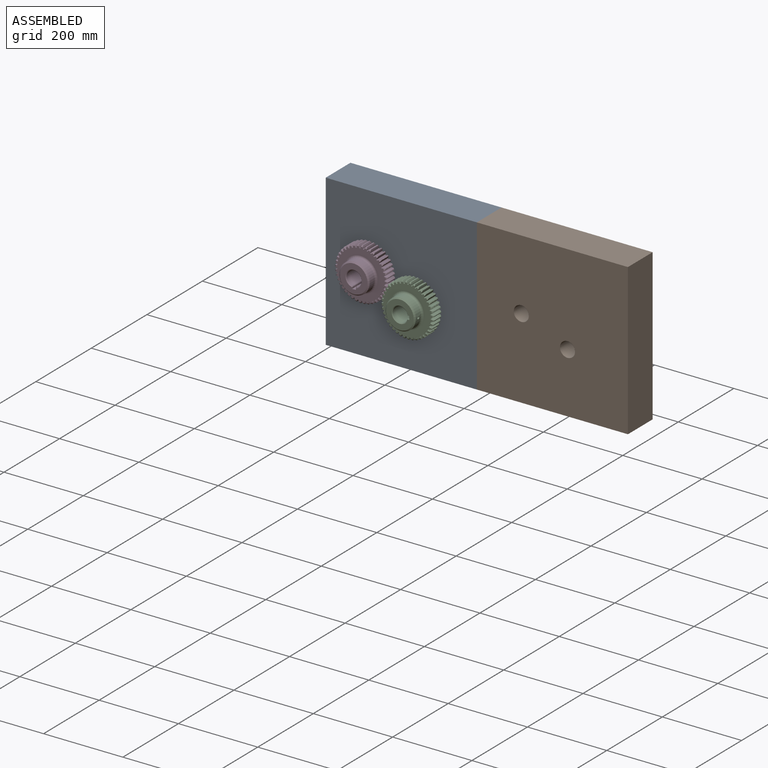
[diagram: assembled view]
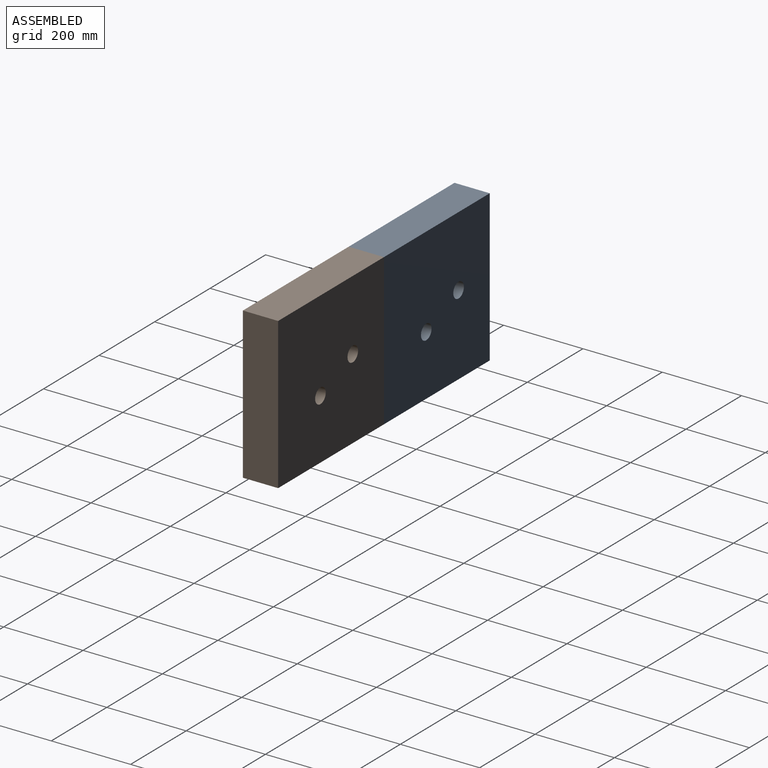
[diagram: assembled view, second angle]
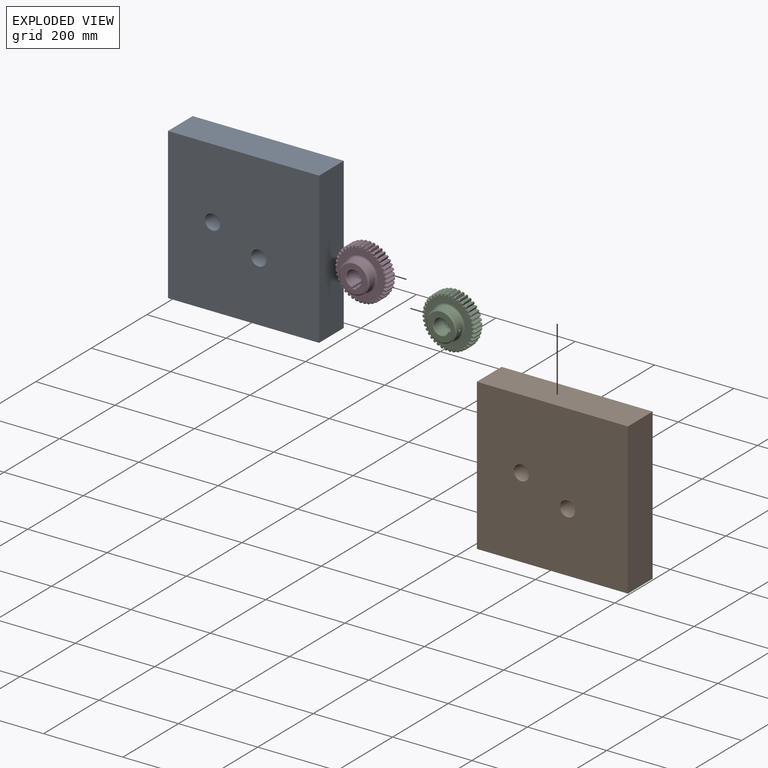
[diagram: exploded view]
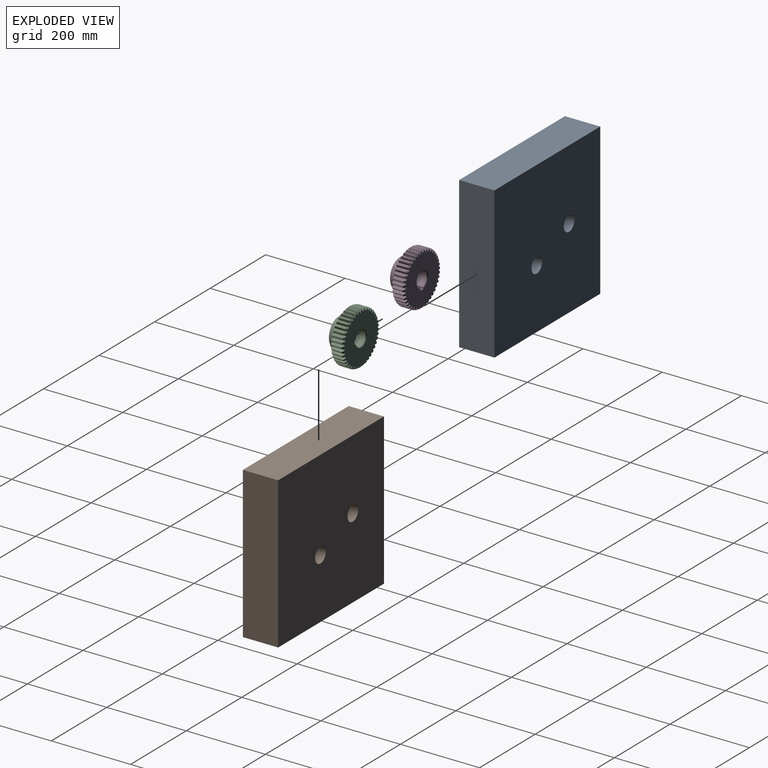
[diagram: exploded view, second angle]
ASSEMBLY  parts=4 mates=5
PART A: 8 faces, bbox 381x88.9x381 mm
  f0: plane 381x88.9mm, normal (0,0,1), area 33870.9mm2, adj f1,f5,f6,f7
  f1: plane 381x88.9mm, normal (-1,0,0), area 33870.9mm2, adj f0,f2,f6,f7
  f2: plane 381x88.9mm, normal (0,0,-1), area 33870.9mm2, adj f1,f5,f6,f7
  f3: cylinder r=19.05mm len=88.9mm, axis (0,1,0), area 10640.9mm2, adj f6,f7
  f4: cylinder r=19.05mm len=88.9mm, axis (0,1,0), area 10640.9mm2, adj f6,f7
  f5: plane 381x88.9mm, normal (1,0,0), area 33870.9mm2, adj f0,f2,f6,f7
  f6: plane 381x381mm, normal (0,-1,0), area 142880.8mm2, adj f0,f1,f2,f3,f4,f5
  f7: plane 381x381mm, normal (0,1,0), area 142880.8mm2, adj f0,f1,f2,f3,f4,f5
PART B: same geometry as A
PART C: 335 faces, bbox 133.3x57.2x133.3 mm
  f0: plane 126.91x126.91mm, normal (0,-1,0), area 6228.7mm2, adj f41,f42,f43,f44,f45,f46,f47,f48
  f1: cylinder r=66.67mm len=25.4mm, axis (0,1,0), area 61.3mm2, adj f83,f120,f255,f256
  f2: cylinder r=66.67mm len=25.4mm, axis (0,1,0), area 61.3mm2, adj f118,f119,f257,f258
  f3: cylinder r=66.67mm len=25.4mm, axis (0,1,0), area 61.3mm2, adj f116,f117,f259,f260
  f4: cylinder r=66.67mm len=25.4mm, axis (0,1,0), area 61.3mm2, adj f114,f115,f261,f262
  f5: cylinder r=66.67mm len=25.4mm, axis (0,1,0), area 61.3mm2, adj f112,f113,f263,f264
  f6: cylinder r=66.67mm len=25.4mm, axis (0,1,0), area 61.3mm2, adj f110,f111,f265,f266
  f7: cylinder r=66.67mm len=25.4mm, axis (0,1,0), area 61.3mm2, adj f108,f109,f267,f268
  f8: cylinder r=66.67mm len=25.4mm, axis (0,1,0), area 61.3mm2, adj f106,f107,f269,f270
  f9: cylinder r=66.67mm len=25.4mm, axis (0,1,0), area 61.3mm2, adj f101,f104,f273,f274
  f10: cylinder r=66.67mm len=25.4mm, axis (0,1,0), area 61.3mm2, adj f102,f105,f271,f272
  f11: cylinder r=66.67mm len=25.4mm, axis (0,1,0), area 61.3mm2, adj f100,f103,f275,f276
  f12: cylinder r=66.67mm len=25.4mm, axis (0,1,0), area 61.3mm2, adj f98,f99,f277,f278
  f13: cylinder r=66.67mm len=25.4mm, axis (0,1,0), area 61.3mm2, adj f96,f97,f279,f280
  f14: cylinder r=66.67mm len=25.4mm, axis (0,1,0), area 61.3mm2, adj f94,f95,f281,f282
  f15: cylinder r=66.67mm len=25.4mm, axis (0,1,0), area 61.3mm2, adj f92,f93,f283,f284
  f16: cylinder r=66.67mm len=25.4mm, axis (0,1,0), area 61.3mm2, adj f90,f91,f285,f286
  f17: cylinder r=66.67mm len=25.4mm, axis (0,1,0), area 61.3mm2, adj f79,f88,f289,f290
  f18: cylinder r=66.67mm len=25.4mm, axis (0,1,0), area 61.3mm2, adj f86,f87,f291,f292
  f19: cylinder r=66.67mm len=25.4mm, axis (0,1,0), area 61.3mm2, adj f81,f84,f295,f296
  f20: cylinder r=66.67mm len=25.4mm, axis (0,1,0), area 61.3mm2, adj f82,f85,f293,f294
  f21: cylinder r=66.67mm len=25.4mm, axis (0,1,0), area 61.3mm2, adj f77,f80,f297,f298
  f22: cylinder r=66.67mm len=25.4mm, axis (0,1,0), area 61.3mm2, adj f75,f78,f299,f300
  f23: cylinder r=66.67mm len=25.4mm, axis (0,1,0), area 61.3mm2, adj f73,f76,f301,f302
  f24: cylinder r=66.67mm len=25.4mm, axis (0,1,0), area 61.3mm2, adj f57,f74,f303,f304
  f25: cylinder r=66.67mm len=25.4mm, axis (0,1,0), area 61.3mm2, adj f41,f72,f305,f306
  f26: cylinder r=66.67mm len=25.4mm, axis (0,1,0), area 61.3mm2, adj f70,f71,f307,f308
  f27: cylinder r=66.67mm len=25.4mm, axis (0,1,0), area 61.3mm2, adj f68,f69,f309,f310
  f28: cylinder r=66.67mm len=25.4mm, axis (0,1,0), area 61.3mm2, adj f66,f67,f311,f312
  f29: cylinder r=66.67mm len=25.4mm, axis (0,1,0), area 61.3mm2, adj f61,f64,f315,f316
  f30: cylinder r=66.67mm len=25.4mm, axis (0,1,0), area 61.3mm2, adj f62,f65,f313,f314
  f31: cylinder r=66.67mm len=25.4mm, axis (0,1,0), area 61.3mm2, adj f60,f63,f317,f318
  f32: cylinder r=66.67mm len=25.4mm, axis (0,1,0), area 61.3mm2, adj f58,f59,f319,f320
  f33: cylinder r=66.67mm len=25.4mm, axis (0,1,0), area 61.3mm2, adj f51,f56,f321,f322
  f34: cylinder r=66.67mm len=25.4mm, axis (0,1,0), area 61.3mm2, adj f54,f55,f323,f324
  f35: cylinder r=66.67mm len=25.4mm, axis (0,1,0), area 61.3mm2, adj f49,f52,f327,f328
  f36: cylinder r=66.67mm len=25.4mm, axis (0,1,0), area 61.3mm2, adj f50,f89,f287,f288
  f37: cylinder r=66.67mm len=25.4mm, axis (0,1,0), area 61.3mm2, adj f48,f53,f325,f326
  f38: cylinder r=66.67mm len=25.4mm, axis (0,1,0), area 61.3mm2, adj f46,f47,f329,f330
  f39: cylinder r=66.67mm len=25.4mm, axis (0,1,0), area 61.3mm2, adj f44,f45,f331,f332
  f40: cylinder r=66.67mm len=25.4mm, axis (0,1,0), area 61.3mm2, adj f42,f43,f333,f334
  f41: extruded ~31.75x6.32mm, area 205.6mm2, adj f0,f25,f126,f128,f305,f306
  f42: extruded ~31.75x6.32mm, area 205.6mm2, adj f0,f40,f126,f129,f333,f334
  f43: extruded ~31.75x6.63mm, area 205.6mm2, adj f0,f40,f126,f131,f333,f334
  f44: extruded ~31.75x5.85mm, area 205.6mm2, adj f0,f39,f126,f132,f331,f332
  f45: extruded ~31.75x6.78mm, area 205.6mm2, adj f0,f39,f126,f134,f331,f332
  f46: extruded ~31.75x5.24mm, area 205.6mm2, adj f0,f38,f126,f135,f329,f330
  f47: extruded ~31.75x6.77mm, area 205.6mm2, adj f0,f38,f126,f137,f329,f330
  f48: extruded ~31.75x5.1mm, area 205.6mm2, adj f0,f37,f126,f138,f325,f326
  f49: extruded ~31.75x5.1mm, area 205.6mm2, adj f0,f35,f126,f140,f327,f328
  f50: extruded ~31.75x6.77mm, area 205.6mm2, adj f0,f36,f126,f141,f287,f288
  f51: extruded ~31.75x5.74mm, area 205.6mm2, adj f0,f33,f126,f143,f321,f322
  f52: extruded ~31.75x6.58mm, area 205.6mm2, adj f0,f35,f126,f144,f327,f328
  f53: extruded ~31.75x6.58mm, area 205.6mm2, adj f0,f37,f126,f146,f325,f326
  f54: extruded ~31.75x5.74mm, area 205.6mm2, adj f0,f34,f126,f147,f323,f324
  f55: extruded ~31.75x6.24mm, area 205.6mm2, adj f0,f34,f126,f149,f323,f324
  f56: extruded ~31.75x6.24mm, area 205.6mm2, adj f0,f33,f126,f150,f321,f322
  f57: extruded ~31.75x6.78mm, area 205.6mm2, adj f0,f24,f126,f152,f303,f304
  f58: extruded ~31.75x5.24mm, area 205.6mm2, adj f0,f32,f126,f153,f319,f320
  f59: extruded ~31.75x6.77mm, area 205.6mm2, adj f0,f32,f126,f155,f319,f320
  f60: extruded ~31.75x5.1mm, area 205.6mm2, adj f0,f31,f126,f156,f317,f318
  f61: extruded ~31.75x6.24mm, area 205.6mm2, adj f0,f29,f126,f158,f315,f316
  f62: extruded ~31.75x6.24mm, area 205.6mm2, adj f0,f30,f126,f159,f313,f314
  f63: extruded ~31.75x6.58mm, area 205.6mm2, adj f0,f31,f126,f161,f317,f318
  f64: extruded ~31.75x5.74mm, area 205.6mm2, adj f0,f29,f126,f162,f315,f316
  f65: extruded ~31.75x5.74mm, area 205.6mm2, adj f0,f30,f126,f164,f313,f314
  f66: extruded ~31.75x6.58mm, area 205.6mm2, adj f0,f28,f126,f165,f311,f312
  f67: extruded ~31.75x5.1mm, area 205.6mm2, adj f0,f28,f126,f167,f311,f312
  f68: extruded ~31.75x6.77mm, area 205.6mm2, adj f0,f27,f126,f168,f309,f310
  f69: extruded ~31.75x5.24mm, area 205.6mm2, adj f0,f27,f126,f170,f309,f310
  f70: extruded ~31.75x6.78mm, area 205.6mm2, adj f0,f26,f126,f171,f307,f308
  f71: extruded ~31.75x5.85mm, area 205.6mm2, adj f0,f26,f126,f173,f307,f308
  f72: extruded ~31.75x6.63mm, area 205.6mm2, adj f0,f25,f126,f174,f305,f306
  f73: extruded ~31.75x6.63mm, area 205.6mm2, adj f0,f23,f126,f176,f301,f302
  f74: extruded ~31.75x5.85mm, area 205.6mm2, adj f0,f24,f126,f177,f303,f304
  f75: extruded ~31.75x6.32mm, area 205.6mm2, adj f0,f22,f126,f179,f299,f300
  f76: extruded ~31.75x6.32mm, area 205.6mm2, adj f0,f23,f126,f180,f301,f302
  f77: extruded ~31.75x5.85mm, area 205.6mm2, adj f0,f21,f126,f182,f297,f298
  f78: extruded ~31.75x6.63mm, area 205.6mm2, adj f0,f22,f126,f183,f299,f300
  f79: extruded ~31.75x5.24mm, area 205.6mm2, adj f0,f17,f126,f185,f289,f290
  f80: extruded ~31.75x6.78mm, area 205.6mm2, adj f0,f21,f126,f186,f297,f298
  f81: extruded ~31.75x6.24mm, area 205.6mm2, adj f0,f19,f126,f188,f295,f296
  f82: extruded ~31.75x6.24mm, area 205.6mm2, adj f0,f20,f126,f189,f293,f294
  f83: extruded ~31.75x6.58mm, area 205.6mm2, adj f0,f1,f126,f191,f255,f256
  f84: extruded ~31.75x5.74mm, area 205.6mm2, adj f0,f19,f126,f192,f295,f296
  f85: extruded ~31.75x5.74mm, area 205.6mm2, adj f0,f20,f126,f194,f293,f294
  f86: extruded ~31.75x6.58mm, area 205.6mm2, adj f0,f18,f126,f195,f291,f292
  f87: extruded ~31.75x5.1mm, area 205.6mm2, adj f0,f18,f126,f197,f291,f292
  f88: extruded ~31.75x6.77mm, area 205.6mm2, adj f0,f17,f126,f198,f289,f290
  f89: extruded ~31.75x5.24mm, area 205.6mm2, adj f0,f36,f126,f200,f287,f288
  f90: extruded ~31.75x6.78mm, area 205.6mm2, adj f0,f16,f126,f201,f285,f286
  f91: extruded ~31.75x5.85mm, area 205.6mm2, adj f0,f16,f126,f203,f285,f286
  f92: extruded ~31.75x6.63mm, area 205.6mm2, adj f0,f15,f126,f204,f283,f284
  f93: extruded ~31.75x6.32mm, area 205.6mm2, adj f0,f15,f126,f206,f283,f284
  f94: extruded ~31.75x6.32mm, area 205.6mm2, adj f0,f14,f126,f207,f281,f282
  f95: extruded ~31.75x6.63mm, area 205.6mm2, adj f0,f14,f126,f209,f281,f282
  f96: extruded ~31.75x5.85mm, area 205.6mm2, adj f0,f13,f126,f210,f279,f280
  f97: extruded ~31.75x6.78mm, area 205.6mm2, adj f0,f13,f126,f212,f279,f280
  f98: extruded ~31.75x5.24mm, area 205.6mm2, adj f0,f12,f126,f213,f277,f278
  f99: extruded ~31.75x6.77mm, area 205.6mm2, adj f0,f12,f126,f215,f277,f278
  f100: extruded ~31.75x5.1mm, area 205.6mm2, adj f0,f11,f126,f216,f275,f276
  f101: extruded ~31.75x6.24mm, area 205.6mm2, adj f0,f9,f126,f218,f273,f274
  f102: extruded ~31.75x6.24mm, area 205.6mm2, adj f0,f10,f126,f219,f271,f272
  f103: extruded ~31.75x6.58mm, area 205.6mm2, adj f0,f11,f126,f221,f275,f276
  f104: extruded ~31.75x5.74mm, area 205.6mm2, adj f0,f9,f126,f222,f273,f274
  f105: extruded ~31.75x5.74mm, area 205.6mm2, adj f0,f10,f126,f224,f271,f272
  f106: extruded ~31.75x6.58mm, area 205.6mm2, adj f0,f8,f126,f225,f269,f270
  f107: extruded ~31.75x5.1mm, area 205.6mm2, adj f0,f8,f126,f227,f269,f270
  f108: extruded ~31.75x6.77mm, area 205.6mm2, adj f0,f7,f126,f228,f267,f268
  f109: extruded ~31.75x5.24mm, area 205.6mm2, adj f0,f7,f126,f230,f267,f268
  f110: extruded ~31.75x6.78mm, area 205.6mm2, adj f0,f6,f126,f231,f265,f266
  f111: extruded ~31.75x5.85mm, area 205.6mm2, adj f0,f6,f126,f233,f265,f266
  f112: extruded ~31.75x6.63mm, area 205.6mm2, adj f0,f5,f126,f234,f263,f264
  f113: extruded ~31.75x6.32mm, area 205.6mm2, adj f0,f5,f126,f236,f263,f264
  f114: extruded ~31.75x6.32mm, area 205.6mm2, adj f0,f4,f126,f237,f261,f262
  f115: extruded ~31.75x6.63mm, area 205.6mm2, adj f0,f4,f126,f239,f261,f262
  f116: extruded ~31.75x5.85mm, area 205.6mm2, adj f0,f3,f126,f240,f259,f260
  f117: extruded ~31.75x6.78mm, area 205.6mm2, adj f0,f3,f126,f242,f259,f260
  f118: extruded ~31.75x5.24mm, area 205.6mm2, adj f0,f2,f126,f243,f257,f258
  f119: extruded ~31.75x6.77mm, area 205.6mm2, adj f0,f2,f126,f245,f257,f258
  f120: extruded ~31.75x5.1mm, area 205.6mm2, adj f0,f1,f126,f246,f255,f256
  f121: cylinder r=38.1mm len=76.2mm, axis (0,1,0), area 4070.8mm2, adj f248,f249,f250
  f122: plane 57.15x4.22mm, normal (-1,0,0), area 241.1mm2, adj f125,f126,f247,f251,f252,f253
  f123: cylinder r=19.05mm len=54.1mm, axis (0,1,0), area 5835.6mm2, adj f251,f252,f253,f254
  f124: plane 57.15x4.22mm, normal (1,0,0), area 241.1mm2, adj f125,f126,f247,f252,f253,f254
  f125: plane 57.15x9.53mm, normal (0,0,-1), area 510.9mm2, adj f122,f124,f126,f247,f250
  f126: plane 126.91x126.91mm, normal (0,1,0), area 10723.8mm2, adj f41,f42,f43,f44,f45,f46,f47,f48
  f127: cylinder r=59.53mm len=31.75mm, axis (0,1,0), area 43.3mm2, adj f0,f126,f128,f129
  f128: cylinder r=0.84mm len=31.75mm, axis (0,1,0), area 38mm2, adj f0,f41,f126,f127
  f129: cylinder r=0.84mm len=31.75mm, axis (0,1,0), area 38mm2, adj f0,f42,f126,f127
  f130: cylinder r=59.53mm len=31.75mm, axis (0,1,0), area 43.3mm2, adj f0,f126,f131,f132
  f131: cylinder r=0.84mm len=31.75mm, axis (0,1,0), area 38mm2, adj f0,f43,f126,f130
  f132: cylinder r=0.84mm len=31.75mm, axis (0,1,0), area 38mm2, adj f0,f44,f126,f130
  f133: cylinder r=59.53mm len=31.75mm, axis (0,1,0), area 43.3mm2, adj f0,f126,f134,f135
  f134: cylinder r=0.84mm len=31.75mm, axis (0,1,0), area 38mm2, adj f0,f45,f126,f133
  f135: cylinder r=0.84mm len=31.75mm, axis (0,1,0), area 38mm2, adj f0,f46,f126,f133
  f136: cylinder r=59.53mm len=31.75mm, axis (0,1,0), area 43.3mm2, adj f0,f126,f137,f138
  f137: cylinder r=0.84mm len=31.75mm, axis (0,1,0), area 38mm2, adj f0,f47,f126,f136
  f138: cylinder r=0.84mm len=31.75mm, axis (0,1,0), area 38mm2, adj f0,f48,f126,f136
  f139: cylinder r=59.53mm len=31.75mm, axis (0,1,0), area 43.3mm2, adj f0,f126,f140,f141
  f140: cylinder r=0.84mm len=31.75mm, axis (0,1,0), area 38mm2, adj f0,f49,f126,f139
  f141: cylinder r=0.84mm len=31.75mm, axis (0,1,0), area 38mm2, adj f0,f50,f126,f139
  f142: cylinder r=59.53mm len=31.75mm, axis (0,1,0), area 43.3mm2, adj f0,f126,f143,f144
  f143: cylinder r=0.84mm len=31.75mm, axis (0,1,0), area 38mm2, adj f0,f51,f126,f142
  f144: cylinder r=0.84mm len=31.75mm, axis (0,1,0), area 38mm2, adj f0,f52,f126,f142
  f145: cylinder r=59.53mm len=31.75mm, axis (0,1,0), area 43.3mm2, adj f0,f126,f146,f147
  f146: cylinder r=0.84mm len=31.75mm, axis (0,1,0), area 38mm2, adj f0,f53,f126,f145
  f147: cylinder r=0.84mm len=31.75mm, axis (0,1,0), area 38mm2, adj f0,f54,f126,f145
  f148: cylinder r=59.53mm len=31.75mm, axis (0,1,0), area 43.3mm2, adj f0,f126,f149,f150
  f149: cylinder r=0.84mm len=31.75mm, axis (0,1,0), area 38mm2, adj f0,f55,f126,f148
  f150: cylinder r=0.84mm len=31.75mm, axis (0,1,0), area 38mm2, adj f0,f56,f126,f148
  f151: cylinder r=59.53mm len=31.75mm, axis (0,1,0), area 43.3mm2, adj f0,f126,f152,f153
  f152: cylinder r=0.84mm len=31.75mm, axis (0,1,0), area 38mm2, adj f0,f57,f126,f151
  f153: cylinder r=0.84mm len=31.75mm, axis (0,1,0), area 38mm2, adj f0,f58,f126,f151
  f154: cylinder r=59.53mm len=31.75mm, axis (0,1,0), area 43.3mm2, adj f0,f126,f155,f156
  f155: cylinder r=0.84mm len=31.75mm, axis (0,1,0), area 38mm2, adj f0,f59,f126,f154
  f156: cylinder r=0.84mm len=31.75mm, axis (0,1,0), area 38mm2, adj f0,f60,f126,f154
  f157: cylinder r=59.53mm len=31.75mm, axis (0,1,0), area 43.3mm2, adj f0,f126,f158,f159
  f158: cylinder r=0.84mm len=31.75mm, axis (0,1,0), area 38mm2, adj f0,f61,f126,f157
  f159: cylinder r=0.84mm len=31.75mm, axis (0,1,0), area 38mm2, adj f0,f62,f126,f157
  f160: cylinder r=59.53mm len=31.75mm, axis (0,1,0), area 43.3mm2, adj f0,f126,f161,f162
  f161: cylinder r=0.84mm len=31.75mm, axis (0,1,0), area 38mm2, adj f0,f63,f126,f160
  f162: cylinder r=0.84mm len=31.75mm, axis (0,1,0), area 38mm2, adj f0,f64,f126,f160
  f163: cylinder r=59.53mm len=31.75mm, axis (0,1,0), area 43.3mm2, adj f0,f126,f164,f165
  f164: cylinder r=0.84mm len=31.75mm, axis (0,1,0), area 38mm2, adj f0,f65,f126,f163
  f165: cylinder r=0.84mm len=31.75mm, axis (0,1,0), area 38mm2, adj f0,f66,f126,f163
  f166: cylinder r=59.53mm len=31.75mm, axis (0,1,0), area 43.3mm2, adj f0,f126,f167,f168
  f167: cylinder r=0.84mm len=31.75mm, axis (0,1,0), area 38mm2, adj f0,f67,f126,f166
  f168: cylinder r=0.84mm len=31.75mm, axis (0,1,0), area 38mm2, adj f0,f68,f126,f166
  f169: cylinder r=59.53mm len=31.75mm, axis (0,1,0), area 43.3mm2, adj f0,f126,f170,f171
  f170: cylinder r=0.84mm len=31.75mm, axis (0,1,0), area 38mm2, adj f0,f69,f126,f169
  f171: cylinder r=0.84mm len=31.75mm, axis (0,1,0), area 38mm2, adj f0,f70,f126,f169
  f172: cylinder r=59.53mm len=31.75mm, axis (0,1,0), area 43.3mm2, adj f0,f126,f173,f174
  f173: cylinder r=0.84mm len=31.75mm, axis (0,1,0), area 38mm2, adj f0,f71,f126,f172
  f174: cylinder r=0.84mm len=31.75mm, axis (0,1,0), area 38mm2, adj f0,f72,f126,f172
  f175: cylinder r=59.53mm len=31.75mm, axis (0,1,0), area 43.3mm2, adj f0,f126,f176,f177
  f176: cylinder r=0.84mm len=31.75mm, axis (0,1,0), area 38mm2, adj f0,f73,f126,f175
  f177: cylinder r=0.84mm len=31.75mm, axis (0,1,0), area 38mm2, adj f0,f74,f126,f175
  f178: cylinder r=59.53mm len=31.75mm, axis (0,1,0), area 43.3mm2, adj f0,f126,f179,f180
  f179: cylinder r=0.84mm len=31.75mm, axis (0,1,0), area 38mm2, adj f0,f75,f126,f178
  f180: cylinder r=0.84mm len=31.75mm, axis (0,1,0), area 38mm2, adj f0,f76,f126,f178
  f181: cylinder r=59.53mm len=31.75mm, axis (0,1,0), area 43.3mm2, adj f0,f126,f182,f183
  f182: cylinder r=0.84mm len=31.75mm, axis (0,1,0), area 38mm2, adj f0,f77,f126,f181
  f183: cylinder r=0.84mm len=31.75mm, axis (0,1,0), area 38mm2, adj f0,f78,f126,f181
  f184: cylinder r=59.53mm len=31.75mm, axis (0,1,0), area 43.3mm2, adj f0,f126,f185,f186
  f185: cylinder r=0.84mm len=31.75mm, axis (0,1,0), area 38mm2, adj f0,f79,f126,f184
  f186: cylinder r=0.84mm len=31.75mm, axis (0,1,0), area 38mm2, adj f0,f80,f126,f184
  f187: cylinder r=59.53mm len=31.75mm, axis (0,1,0), area 43.3mm2, adj f0,f126,f188,f189
  f188: cylinder r=0.84mm len=31.75mm, axis (0,1,0), area 38mm2, adj f0,f81,f126,f187
  f189: cylinder r=0.84mm len=31.75mm, axis (0,1,0), area 38mm2, adj f0,f82,f126,f187
  f190: cylinder r=59.53mm len=31.75mm, axis (0,1,0), area 43.3mm2, adj f0,f126,f191,f192
  f191: cylinder r=0.84mm len=31.75mm, axis (0,1,0), area 38mm2, adj f0,f83,f126,f190
  f192: cylinder r=0.84mm len=31.75mm, axis (0,1,0), area 38mm2, adj f0,f84,f126,f190
  f193: cylinder r=59.53mm len=31.75mm, axis (0,1,0), area 43.3mm2, adj f0,f126,f194,f195
  f194: cylinder r=0.84mm len=31.75mm, axis (0,1,0), area 38mm2, adj f0,f85,f126,f193
  f195: cylinder r=0.84mm len=31.75mm, axis (0,1,0), area 38mm2, adj f0,f86,f126,f193
  f196: cylinder r=59.53mm len=31.75mm, axis (0,1,0), area 43.3mm2, adj f0,f126,f197,f198
  f197: cylinder r=0.84mm len=31.75mm, axis (0,1,0), area 38mm2, adj f0,f87,f126,f196
  f198: cylinder r=0.84mm len=31.75mm, axis (0,1,0), area 38mm2, adj f0,f88,f126,f196
  f199: cylinder r=59.53mm len=31.75mm, axis (0,1,0), area 43.3mm2, adj f0,f126,f200,f201
  f200: cylinder r=0.84mm len=31.75mm, axis (0,1,0), area 38mm2, adj f0,f89,f126,f199
  f201: cylinder r=0.84mm len=31.75mm, axis (0,1,0), area 38mm2, adj f0,f90,f126,f199
  f202: cylinder r=59.53mm len=31.75mm, axis (0,1,0), area 43.3mm2, adj f0,f126,f203,f204
  f203: cylinder r=0.84mm len=31.75mm, axis (0,1,0), area 38mm2, adj f0,f91,f126,f202
  f204: cylinder r=0.84mm len=31.75mm, axis (0,1,0), area 38mm2, adj f0,f92,f126,f202
  f205: cylinder r=59.53mm len=31.75mm, axis (0,1,0), area 43.3mm2, adj f0,f126,f206,f207
  f206: cylinder r=0.84mm len=31.75mm, axis (0,1,0), area 38mm2, adj f0,f93,f126,f205
  f207: cylinder r=0.84mm len=31.75mm, axis (0,1,0), area 38mm2, adj f0,f94,f126,f205
  f208: cylinder r=59.53mm len=31.75mm, axis (0,1,0), area 43.3mm2, adj f0,f126,f209,f210
  f209: cylinder r=0.84mm len=31.75mm, axis (0,1,0), area 38mm2, adj f0,f95,f126,f208
  f210: cylinder r=0.84mm len=31.75mm, axis (0,1,0), area 38mm2, adj f0,f96,f126,f208
  f211: cylinder r=59.53mm len=31.75mm, axis (0,1,0), area 43.3mm2, adj f0,f126,f212,f213
  f212: cylinder r=0.84mm len=31.75mm, axis (0,1,0), area 38mm2, adj f0,f97,f126,f211
  f213: cylinder r=0.84mm len=31.75mm, axis (0,1,0), area 38mm2, adj f0,f98,f126,f211
  f214: cylinder r=59.53mm len=31.75mm, axis (0,1,0), area 43.3mm2, adj f0,f126,f215,f216
  f215: cylinder r=0.84mm len=31.75mm, axis (0,1,0), area 38mm2, adj f0,f99,f126,f214
  f216: cylinder r=0.84mm len=31.75mm, axis (0,1,0), area 38mm2, adj f0,f100,f126,f214
  f217: cylinder r=59.53mm len=31.75mm, axis (0,1,0), area 43.3mm2, adj f0,f126,f218,f219
  f218: cylinder r=0.84mm len=31.75mm, axis (0,1,0), area 38mm2, adj f0,f101,f126,f217
  f219: cylinder r=0.84mm len=31.75mm, axis (0,1,0), area 38mm2, adj f0,f102,f126,f217
  f220: cylinder r=59.53mm len=31.75mm, axis (0,1,0), area 43.3mm2, adj f0,f126,f221,f222
  f221: cylinder r=0.84mm len=31.75mm, axis (0,1,0), area 38mm2, adj f0,f103,f126,f220
  f222: cylinder r=0.84mm len=31.75mm, axis (0,1,0), area 38mm2, adj f0,f104,f126,f220
  f223: cylinder r=59.53mm len=31.75mm, axis (0,1,0), area 43.3mm2, adj f0,f126,f224,f225
  f224: cylinder r=0.84mm len=31.75mm, axis (0,1,0), area 38mm2, adj f0,f105,f126,f223
  f225: cylinder r=0.84mm len=31.75mm, axis (0,1,0), area 38mm2, adj f0,f106,f126,f223
  f226: cylinder r=59.53mm len=31.75mm, axis (0,1,0), area 43.3mm2, adj f0,f126,f227,f228
  f227: cylinder r=0.84mm len=31.75mm, axis (0,1,0), area 38mm2, adj f0,f107,f126,f226
  f228: cylinder r=0.84mm len=31.75mm, axis (0,1,0), area 38mm2, adj f0,f108,f126,f226
  f229: cylinder r=59.53mm len=31.75mm, axis (0,1,0), area 43.3mm2, adj f0,f126,f230,f231
  f230: cylinder r=0.84mm len=31.75mm, axis (0,1,0), area 38mm2, adj f0,f109,f126,f229
  f231: cylinder r=0.84mm len=31.75mm, axis (0,1,0), area 38mm2, adj f0,f110,f126,f229
  f232: cylinder r=59.53mm len=31.75mm, axis (0,1,0), area 43.3mm2, adj f0,f126,f233,f234
  f233: cylinder r=0.84mm len=31.75mm, axis (0,1,0), area 38mm2, adj f0,f111,f126,f232
  f234: cylinder r=0.84mm len=31.75mm, axis (0,1,0), area 38mm2, adj f0,f112,f126,f232
  f235: cylinder r=59.53mm len=31.75mm, axis (0,1,0), area 43.3mm2, adj f0,f126,f236,f237
  f236: cylinder r=0.84mm len=31.75mm, axis (0,1,0), area 38mm2, adj f0,f113,f126,f235
  f237: cylinder r=0.84mm len=31.75mm, axis (0,1,0), area 38mm2, adj f0,f114,f126,f235
  f238: cylinder r=59.53mm len=31.75mm, axis (0,1,0), area 43.3mm2, adj f0,f126,f239,f240
  f239: cylinder r=0.84mm len=31.75mm, axis (0,1,0), area 38mm2, adj f0,f115,f126,f238
  f240: cylinder r=0.84mm len=31.75mm, axis (0,1,0), area 38mm2, adj f0,f116,f126,f238
  f241: cylinder r=59.53mm len=31.75mm, axis (0,1,0), area 43.3mm2, adj f0,f126,f242,f243
  f242: cylinder r=0.84mm len=31.75mm, axis (0,1,0), area 38mm2, adj f0,f117,f126,f241
  f243: cylinder r=0.84mm len=31.75mm, axis (0,1,0), area 38mm2, adj f0,f118,f126,f241
  f244: cylinder r=59.53mm len=31.75mm, axis (0,1,0), area 43.3mm2, adj f0,f126,f245,f246
  f245: cylinder r=0.84mm len=31.75mm, axis (0,1,0), area 38mm2, adj f0,f119,f126,f244
  f246: cylinder r=0.84mm len=31.75mm, axis (0,1,0), area 38mm2, adj f0,f120,f126,f244
  f247: plane 69.85x69.85mm, normal (0,-1,0), area 2469.6mm2, adj f122,f124,f125,f248,f252
  f248: cone r=34.92mm half-angle=45deg, axis (0,1,0), area 1030.1mm2, adj f121,f247
  f249: torus R=43.18mm, axis (0,-1,0), area 2002.8mm2, adj f0,f121
  f250: cylinder r=3.26mm len=14.29mm, axis (0,0,-1), area 291.6mm2, adj f121,f125
  f251: plane 56.38x1.51mm, normal (-0.81,0,-0.59), area 99.1mm2, adj f122,f123,f252,f253
  f252: cone r=19.05mm half-angle=45deg, axis (0,-1,0), area 245.8mm2, adj f122,f123,f124,f247,f251,f254
  f253: cone r=20.57mm half-angle=45deg, axis (0,1,0), area 245.8mm2, adj f122,f123,f124,f126,f251,f254
  f254: plane 56.38x1.51mm, normal (0.81,0,-0.59), area 99.1mm2, adj f123,f124,f252,f253
  f255: cone r=63.5mm half-angle=45deg, axis (0,-1,0), area 16.7mm2, adj f1,f83,f120,f126
  f256: cone r=63.5mm half-angle=45deg, axis (0,1,0), area 16.7mm2, adj f0,f1,f83,f120
  f257: cone r=63.5mm half-angle=45deg, axis (0,-1,0), area 16.7mm2, adj f2,f118,f119,f126
  f258: cone r=63.5mm half-angle=45deg, axis (0,1,0), area 16.7mm2, adj f0,f2,f118,f119
  f259: cone r=63.5mm half-angle=45deg, axis (0,-1,0), area 16.7mm2, adj f3,f116,f117,f126
  f260: cone r=63.5mm half-angle=45deg, axis (0,1,0), area 16.7mm2, adj f0,f3,f116,f117
  f261: cone r=63.5mm half-angle=45deg, axis (0,-1,0), area 16.7mm2, adj f4,f114,f115,f126
  f262: cone r=63.5mm half-angle=45deg, axis (0,1,0), area 16.7mm2, adj f0,f4,f114,f115
  f263: cone r=63.5mm half-angle=45deg, axis (0,-1,0), area 16.7mm2, adj f5,f112,f113,f126
  f264: cone r=63.5mm half-angle=45deg, axis (0,1,0), area 16.7mm2, adj f0,f5,f112,f113
  f265: cone r=63.5mm half-angle=45deg, axis (0,-1,0), area 16.7mm2, adj f6,f110,f111,f126
  f266: cone r=63.5mm half-angle=45deg, axis (0,1,0), area 16.7mm2, adj f0,f6,f110,f111
  f267: cone r=63.5mm half-angle=45deg, axis (0,-1,0), area 16.7mm2, adj f7,f108,f109,f126
  f268: cone r=63.5mm half-angle=45deg, axis (0,1,0), area 16.7mm2, adj f0,f7,f108,f109
  f269: cone r=63.5mm half-angle=45deg, axis (0,-1,0), area 16.7mm2, adj f8,f106,f107,f126
  f270: cone r=63.5mm half-angle=45deg, axis (0,1,0), area 16.7mm2, adj f0,f8,f106,f107
  f271: cone r=63.5mm half-angle=45deg, axis (0,-1,0), area 16.7mm2, adj f10,f102,f105,f126
  f272: cone r=63.5mm half-angle=45deg, axis (0,1,0), area 16.7mm2, adj f0,f10,f102,f105
  f273: cone r=63.5mm half-angle=45deg, axis (0,-1,0), area 16.7mm2, adj f9,f101,f104,f126
  f274: cone r=63.5mm half-angle=45deg, axis (0,1,0), area 16.7mm2, adj f0,f9,f101,f104
  f275: cone r=63.5mm half-angle=45deg, axis (0,-1,0), area 16.7mm2, adj f11,f100,f103,f126
  f276: cone r=63.5mm half-angle=45deg, axis (0,1,0), area 16.7mm2, adj f0,f11,f100,f103
  f277: cone r=63.5mm half-angle=45deg, axis (0,-1,0), area 16.7mm2, adj f12,f98,f99,f126
  f278: cone r=63.5mm half-angle=45deg, axis (0,1,0), area 16.7mm2, adj f0,f12,f98,f99
  f279: cone r=63.5mm half-angle=45deg, axis (0,-1,0), area 16.7mm2, adj f13,f96,f97,f126
  f280: cone r=63.5mm half-angle=45deg, axis (0,1,0), area 16.7mm2, adj f0,f13,f96,f97
  f281: cone r=63.5mm half-angle=45deg, axis (0,-1,0), area 16.7mm2, adj f14,f94,f95,f126
  f282: cone r=63.5mm half-angle=45deg, axis (0,1,0), area 16.7mm2, adj f0,f14,f94,f95
  f283: cone r=63.5mm half-angle=45deg, axis (0,-1,0), area 16.7mm2, adj f15,f92,f93,f126
  f284: cone r=63.5mm half-angle=45deg, axis (0,1,0), area 16.7mm2, adj f0,f15,f92,f93
  f285: cone r=63.5mm half-angle=45deg, axis (0,-1,0), area 16.7mm2, adj f16,f90,f91,f126
  f286: cone r=63.5mm half-angle=45deg, axis (0,1,0), area 16.7mm2, adj f0,f16,f90,f91
  f287: cone r=63.5mm half-angle=45deg, axis (0,-1,0), area 16.7mm2, adj f36,f50,f89,f126
  f288: cone r=63.5mm half-angle=45deg, axis (0,1,0), area 16.7mm2, adj f0,f36,f50,f89
  f289: cone r=63.5mm half-angle=45deg, axis (0,-1,0), area 16.7mm2, adj f17,f79,f88,f126
  f290: cone r=63.5mm half-angle=45deg, axis (0,1,0), area 16.7mm2, adj f0,f17,f79,f88
  f291: cone r=63.5mm half-angle=45deg, axis (0,-1,0), area 16.7mm2, adj f18,f86,f87,f126
  f292: cone r=63.5mm half-angle=45deg, axis (0,1,0), area 16.7mm2, adj f0,f18,f86,f87
  f293: cone r=63.5mm half-angle=45deg, axis (0,-1,0), area 16.7mm2, adj f20,f82,f85,f126
  f294: cone r=63.5mm half-angle=45deg, axis (0,1,0), area 16.7mm2, adj f0,f20,f82,f85
  f295: cone r=63.5mm half-angle=45deg, axis (0,-1,0), area 16.7mm2, adj f19,f81,f84,f126
  f296: cone r=63.5mm half-angle=45deg, axis (0,1,0), area 16.7mm2, adj f0,f19,f81,f84
  f297: cone r=63.5mm half-angle=45deg, axis (0,-1,0), area 16.7mm2, adj f21,f77,f80,f126
  f298: cone r=63.5mm half-angle=45deg, axis (0,1,0), area 16.7mm2, adj f0,f21,f77,f80
  f299: cone r=63.5mm half-angle=45deg, axis (0,-1,0), area 16.7mm2, adj f22,f75,f78,f126
  f300: cone r=63.5mm half-angle=45deg, axis (0,1,0), area 16.7mm2, adj f0,f22,f75,f78
  f301: cone r=63.5mm half-angle=45deg, axis (0,-1,0), area 16.7mm2, adj f23,f73,f76,f126
  f302: cone r=63.5mm half-angle=45deg, axis (0,1,0), area 16.7mm2, adj f0,f23,f73,f76
  f303: cone r=63.5mm half-angle=45deg, axis (0,-1,0), area 16.7mm2, adj f24,f57,f74,f126
  f304: cone r=63.5mm half-angle=45deg, axis (0,1,0), area 16.7mm2, adj f0,f24,f57,f74
  f305: cone r=63.5mm half-angle=45deg, axis (0,-1,0), area 16.7mm2, adj f25,f41,f72,f126
  f306: cone r=63.5mm half-angle=45deg, axis (0,1,0), area 16.7mm2, adj f0,f25,f41,f72
  f307: cone r=63.5mm half-angle=45deg, axis (0,-1,0), area 16.7mm2, adj f26,f70,f71,f126
  f308: cone r=63.5mm half-angle=45deg, axis (0,1,0), area 16.7mm2, adj f0,f26,f70,f71
  f309: cone r=63.5mm half-angle=45deg, axis (0,-1,0), area 16.7mm2, adj f27,f68,f69,f126
  f310: cone r=63.5mm half-angle=45deg, axis (0,1,0), area 16.7mm2, adj f0,f27,f68,f69
  f311: cone r=63.5mm half-angle=45deg, axis (0,-1,0), area 16.7mm2, adj f28,f66,f67,f126
  f312: cone r=63.5mm half-angle=45deg, axis (0,1,0), area 16.7mm2, adj f0,f28,f66,f67
  f313: cone r=63.5mm half-angle=45deg, axis (0,-1,0), area 16.7mm2, adj f30,f62,f65,f126
  f314: cone r=63.5mm half-angle=45deg, axis (0,1,0), area 16.7mm2, adj f0,f30,f62,f65
  f315: cone r=63.5mm half-angle=45deg, axis (0,-1,0), area 16.7mm2, adj f29,f61,f64,f126
  f316: cone r=63.5mm half-angle=45deg, axis (0,1,0), area 16.7mm2, adj f0,f29,f61,f64
  f317: cone r=63.5mm half-angle=45deg, axis (0,-1,0), area 16.7mm2, adj f31,f60,f63,f126
  f318: cone r=63.5mm half-angle=45deg, axis (0,1,0), area 16.7mm2, adj f0,f31,f60,f63
  f319: cone r=63.5mm half-angle=45deg, axis (0,-1,0), area 16.7mm2, adj f32,f58,f59,f126
  f320: cone r=63.5mm half-angle=45deg, axis (0,1,0), area 16.7mm2, adj f0,f32,f58,f59
  f321: cone r=63.5mm half-angle=45deg, axis (0,-1,0), area 16.7mm2, adj f33,f51,f56,f126
  f322: cone r=63.5mm half-angle=45deg, axis (0,1,0), area 16.7mm2, adj f0,f33,f51,f56
  f323: cone r=63.5mm half-angle=45deg, axis (0,-1,0), area 16.7mm2, adj f34,f54,f55,f126
  f324: cone r=63.5mm half-angle=45deg, axis (0,1,0), area 16.7mm2, adj f0,f34,f54,f55
  f325: cone r=63.5mm half-angle=45deg, axis (0,-1,0), area 16.7mm2, adj f37,f48,f53,f126
  f326: cone r=63.5mm half-angle=45deg, axis (0,1,0), area 16.7mm2, adj f0,f37,f48,f53
  f327: cone r=63.5mm half-angle=45deg, axis (0,-1,0), area 16.7mm2, adj f35,f49,f52,f126
  f328: cone r=63.5mm half-angle=45deg, axis (0,1,0), area 16.7mm2, adj f0,f35,f49,f52
  f329: cone r=63.5mm half-angle=45deg, axis (0,-1,0), area 16.7mm2, adj f38,f46,f47,f126
  f330: cone r=63.5mm half-angle=45deg, axis (0,1,0), area 16.7mm2, adj f0,f38,f46,f47
  f331: cone r=63.5mm half-angle=45deg, axis (0,-1,0), area 16.7mm2, adj f39,f44,f45,f126
  f332: cone r=63.5mm half-angle=45deg, axis (0,1,0), area 16.7mm2, adj f0,f39,f44,f45
  f333: cone r=63.5mm half-angle=45deg, axis (0,-1,0), area 16.7mm2, adj f40,f42,f43,f126
  f334: cone r=63.5mm half-angle=45deg, axis (0,1,0), area 16.7mm2, adj f0,f40,f42,f43
PART D: same geometry as C
PLACE A rot(axis=(0,1,0),0deg) t=(46.08,-187.31,-53.22)mm fixed
PLACE B t=(427.08,-187.31,-53.22)mm
PLACE C rot(axis=(0,1,0),92.3deg) t=(-46.77,-278.75,-117.71)mm
PLACE D rot(axis=(0,1,0),177.7deg) t=(-163.16,-278.75,-66.91)mm
MATE revolute A.f4 <-> C.f1  axis (0,-1,0) through (-46.77,-276.21,-117.71)mm
MATE revolute D.f1 <-> A.f3  axis (0,1,0) through (-163.16,-278.75,-66.91)mm
MATE planar A.f0 <-> B.f0  axis (0,0,-1) through (105.63,-187.31,110.89)mm
MATE planar A.f6 <-> B.f6  axis (0,-1,0) through (105.63,-276.21,110.89)mm
MATE planar A.f5 <-> B.f1  axis (1,0,0) through (105.63,-231.76,-79.61)mm
